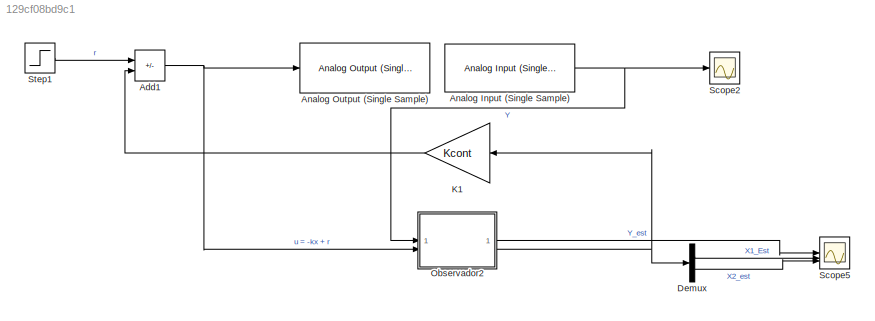
MODEL slx_129cf08bd9c1
KIND model
CONFIG AbsTol = auto
CONFIG EnableMultiTasking = off
CONFIG FixedStep = auto
CONFIG MaxStep = auto
CONFIG MinStep = auto
CONFIG RelTol = 1e-3
CONFIG SampleTimeConstraint = Unconstrained
CONFIG SolverName = VariableStepAuto
CONFIG StartTime = 0.0
CONFIG StopTime = inf
BLOCK [Sum] Add1
  IconShape = rectangular
  Inputs = +-
BLOCK [Reference] Analog Input (Single Sample)  REF=daqlib/Analog Input
(Single Sample)
  SourceBlock = daqlib/Analog Input\n(Single Sample)
  SourceType = Analog Input (Single Sample)
BLOCK [Reference] Analog Output (Single Sample)  REF=daqlib/Analog Output
(Single Sample)
  SourceBlock = daqlib/Analog Output\n(Single Sample)
  SourceType = Analog Output (Single Sample)
BLOCK [Demux] Demux
  Outputs = 2
BLOCK [Gain] K1
  Gain = Kcont
  Multiplication = Matrix(K*u) (u vector)
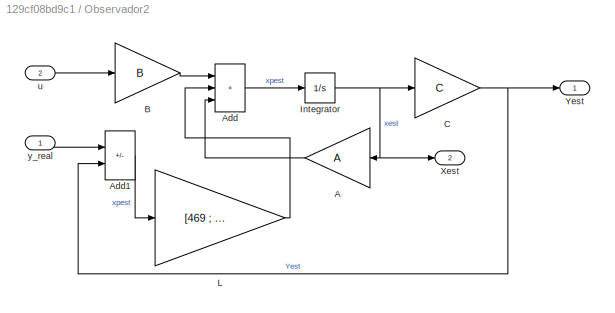
BLOCK [SubSystem] Observador2
BLOCK [Gain] Observador2/A
  Gain = A
  Multiplication = Matrix(K*u) (u vector)
BLOCK [Sum] Observador2/Add
  IconShape = rectangular
  Inputs = +++
BLOCK [Sum] Observador2/Add1
  IconShape = rectangular
  Inputs = +-
BLOCK [Gain] Observador2/B
  Gain = B
  Multiplication = Matrix(K*u) (u vector)
BLOCK [Gain] Observador2/C
  Gain = C
  Multiplication = Matrix(K*u) (u vector)
BLOCK [Integrator] Observador2/Integrator
BLOCK [Gain] Observador2/L
  Gain = [469 ; 12696]
  Multiplication = Matrix(K*u) (u vector)
BLOCK [Outport] Observador2/Xest
  Port = 2
BLOCK [Outport] Observador2/Yest
BLOCK [Inport] Observador2/u
  Port = 2
BLOCK [Inport] Observador2/y_real
BLOCK [Scope] Scope2
  Floating = off
  NumInputPorts = 1
  ScopeSpecificationString = Simulink.scopes.TimeScopeBlockCfg('CurrentConfiguration', extmgr.ConfigurationSet(extmgr.Configuration('Core','General UI',true),extmgr.Configuration('Core','Source UI',true),extmgr.Configuration('Sources','WiredSimulink',true,'DataLoggingVariableName','ScopeData1'),extmgr.Configuration('Visuals','Time Domain',true,'SerializedDisplays',{struct('MinYLimReal','-0.35364','MaxYLimReal','0.07429','YLab...<+1490ch>
BLOCK [Scope] Scope5
  Floating = off
  NumInputPorts = 3
  ScopeSpecificationString = Simulink.scopes.TimeScopeBlockCfg('CurrentConfiguration', extmgr.ConfigurationSet(extmgr.Configuration('Core','General UI',true),extmgr.Configuration('Core','Source UI',true),extmgr.Configuration('Sources','WiredSimulink',true,'DataLoggingVariableName','ScopeData2'),extmgr.Configuration('Visuals','Time Domain',true,'SerializedDisplays',{struct('MinYLimReal','-4.69061','MaxYLimReal','-0.30982','YLa...<+3021ch>
BLOCK [Step] Step1
  After = 0
  SampleTime = 0
  Time = 0
NET Add1:1 -> Analog Output (Single Sample):1, Observador2:2
NET Analog Input (Single Sample):1 -> Observador2:1, Scope2:1
LINE Demux:1 -> Scope5:2
LINE Demux:2 -> Scope5:3
LINE K1:1 -> Add1:2
LINE Observador2/A:1 -> Observador2/Add:3
LINE Observador2/Add1:1 -> Observador2/L:1
LINE Observador2/Add:1 -> Observador2/Integrator:1
LINE Observador2/B:1 -> Observador2/Add:1
NET Observador2/C:1 -> Observador2/Add1:2, Observador2/Yest:1
NET Observador2/Integrator:1 -> Observador2/A:1, Observador2/C:1, Observador2/Xest:1
LINE Observador2/L:1 -> Observador2/Add:2
LINE Observador2/u:1 -> Observador2/B:1
LINE Observador2/y_real:1 -> Observador2/Add1:1
LINE Observador2:1 -> Scope5:1
NET Observador2:2 -> Demux:1, K1:1
LINE Step1:1 -> Add1:1
note: NET lines group one-source signal fan-out (src -> all destinations, sorted); 1:1 wires keep LINE
